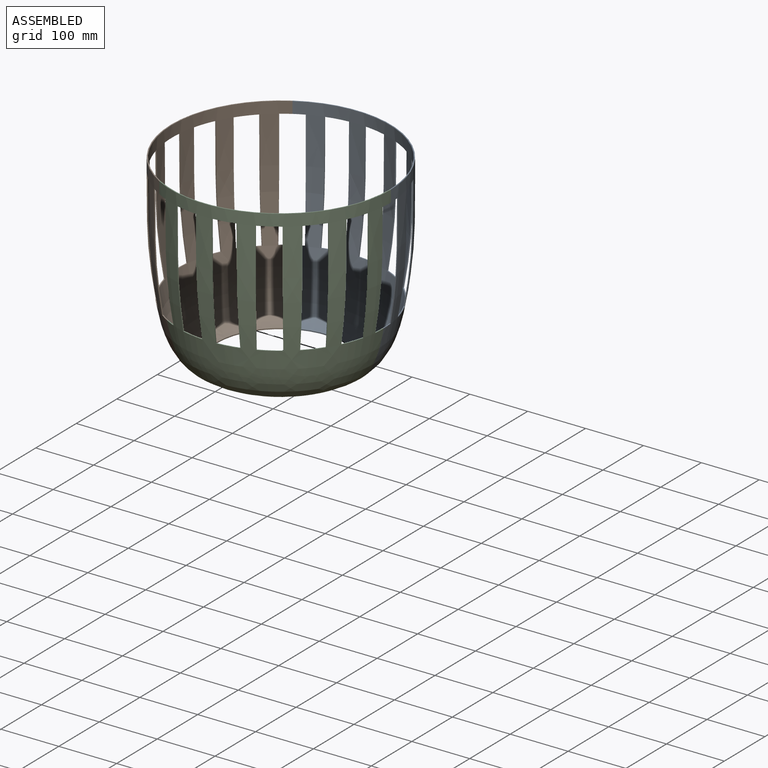
[diagram: assembled view]
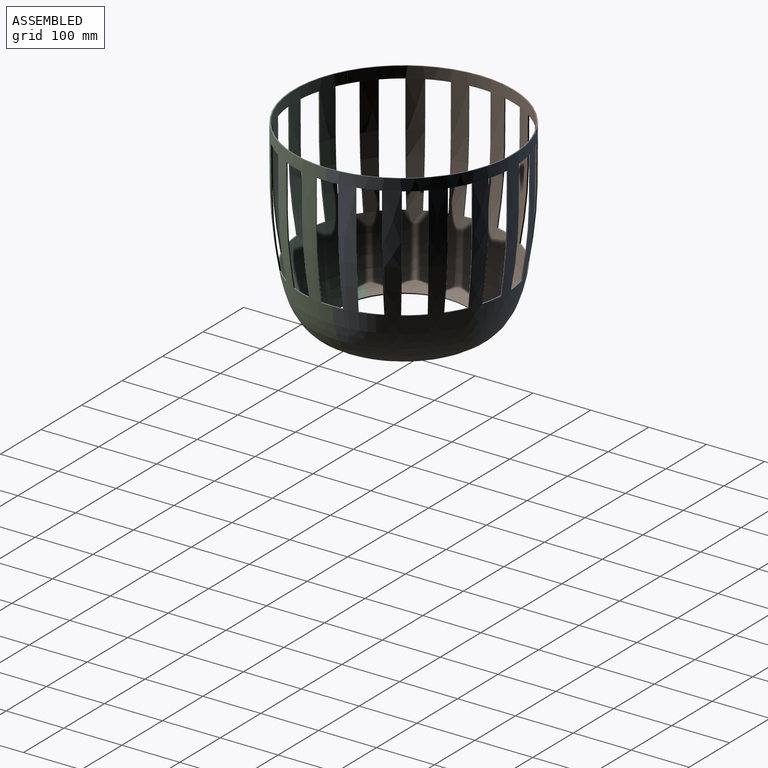
[diagram: assembled view, second angle]
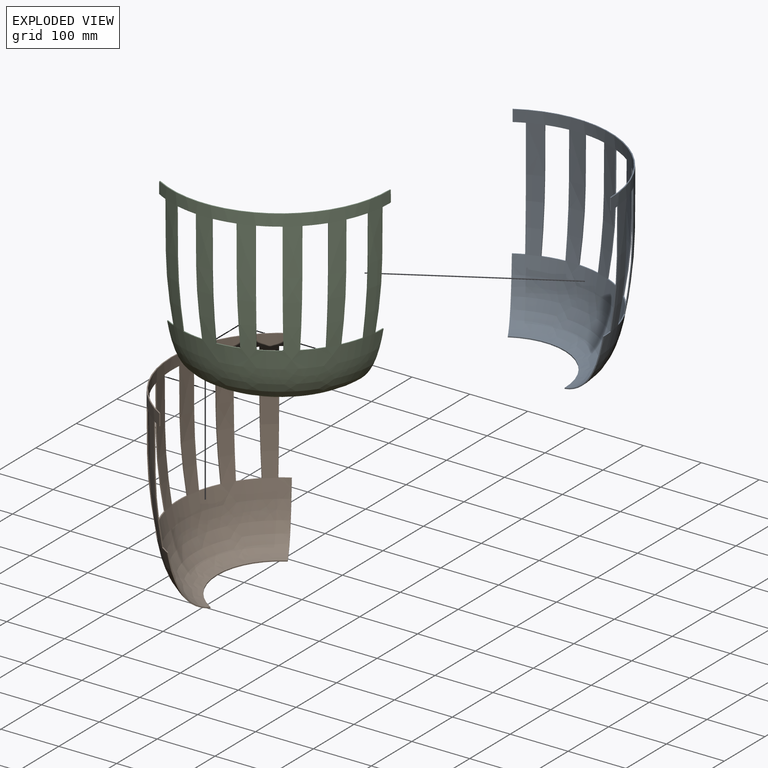
[diagram: exploded view]
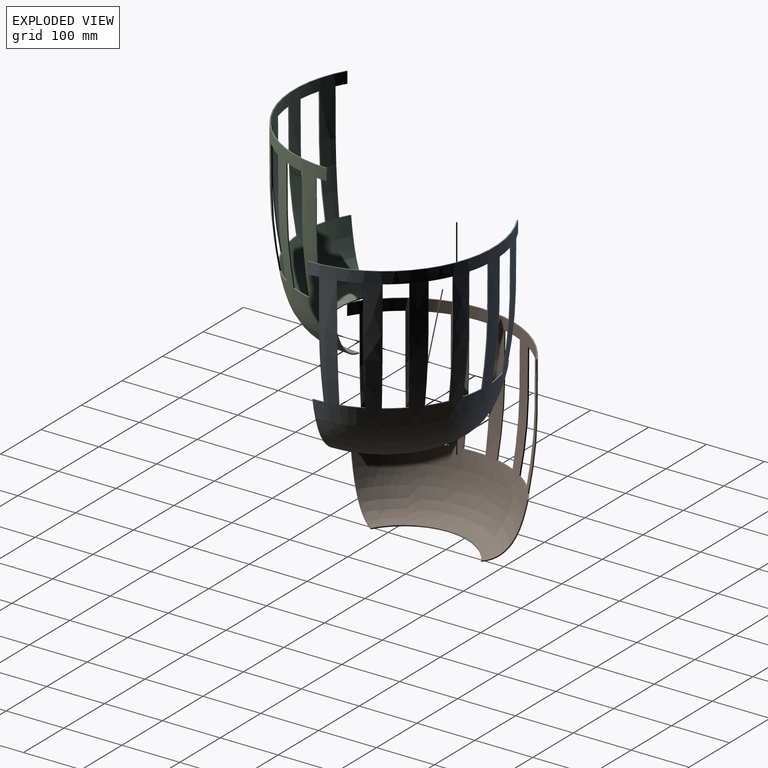
[diagram: exploded view, second angle]
ASSEMBLY  parts=3 mates=2
PART A: 34 faces, bbox 285.2x190.1x320 mm
  f0: revolved ~318.19x282.48mm, area 80564mm2, adj f2,f3,f4,f5,f6,f7,f8,f9
  f1: revolved ~320x285.18mm, area 82605.3mm2, adj f2,f3,f4,f5,f6,f7,f8,f9
  f2: plane 105.65x64.33mm, normal (-0.87,-0.5,0), area 231.3mm2, adj f0,f1,f5,f32
  f3: plane 105.65x73.41mm, normal (0,-1,0), area 231.3mm2, adj f0,f1,f5,f9
  f4: cone r=188.2mm half-angle=89.7deg, axis (0,0,1), area 712.9mm2, adj f0,f1,f6,f7
  f5: cone r=109.89mm half-angle=3.4deg, axis (0,0,-1), area 415.2mm2, adj f0,f1,f2,f3
  f6: plane 20.05x1.71mm, normal (-0.87,-0.5,0), area 36mm2, adj f0,f1,f4,f33
  f7: plane 20.05x1.96mm, normal (0,-1,0), area 36mm2, adj f0,f1,f4,f10
  f8: plane 199.99x14.38mm, normal (0,-1,0), area 363.2mm2, adj f0,f1,f9,f10
  f9: plane 19x2.86mm, normal (0,0,1), area 34.8mm2, adj f0,f1,f3,f8
  f10: plane 19x2.76mm, normal (0,0,-1), area 34.3mm2, adj f0,f1,f7,f8
  f11: plane 36.34x14.72mm, normal (0,0,1), area 69.6mm2, adj f0,f1,f12,f14
  f12: plane 199.99x13.51mm, normal (0.34,-0.94,0), area 363.2mm2, adj f0,f1,f11,f13
  f13: plane 36.33x14.7mm, normal (0,0,-1), area 68.5mm2, adj f0,f1,f12,f14
  f14: plane 199.99x13.51mm, normal (-0.34,0.94,0), area 363.2mm2, adj f0,f1,f11,f13
  f15: plane 30.29x25.83mm, normal (0,0,1), area 69.6mm2, adj f0,f1,f16,f18
  f16: plane 199.99x11.02mm, normal (0.64,-0.77,0), area 363.2mm2, adj f0,f1,f15,f17
  f17: plane 30.27x25.81mm, normal (0,0,-1), area 68.5mm2, adj f0,f1,f16,f18
  f18: plane 199.99x11.02mm, normal (-0.64,0.77,0), area 363.2mm2, adj f0,f1,f15,f17
  f19: plane 33.83x20.59mm, normal (0,0,1), area 69.6mm2, adj f0,f1,f20,f22
  f20: plane 199.99x12.45mm, normal (0.87,-0.5,0), area 363.2mm2, adj f0,f1,f19,f21
  f21: plane 33.81x20.57mm, normal (0,0,-1), area 68.5mm2, adj f0,f1,f20,f22
  f22: plane 199.99x12.45mm, normal (-0.87,0.5,0), area 363.2mm2, adj f0,f1,f19,f21
  f23: plane 37.74x8.41mm, normal (0,0,1), area 69.6mm2, adj f0,f1,f24,f26
  f24: plane 199.99x14.16mm, normal (0.98,-0.17,0), area 363.2mm2, adj f0,f1,f23,f25
  f25: plane 37.74x8.38mm, normal (0,0,-1), area 68.5mm2, adj f0,f1,f24,f26
  f26: plane 199.99x14.16mm, normal (-0.98,0.17,0), area 363.2mm2, adj f0,f1,f23,f25
  f27: plane 37.74x8.41mm, normal (0,0,1), area 69.6mm2, adj f0,f1,f28,f30
  f28: plane 199.99x14.16mm, normal (0.98,0.17,0), area 363.2mm2, adj f0,f1,f27,f29
  f29: plane 37.74x8.38mm, normal (0,0,-1), area 68.5mm2, adj f0,f1,f28,f30
  f30: plane 199.99x14.16mm, normal (-0.98,-0.17,0), area 363.2mm2, adj f0,f1,f27,f29
  f31: plane 199.99x12.45mm, normal (-0.87,-0.5,0), area 363.2mm2, adj f0,f1,f32,f33
  f32: plane 17.88x10.2mm, normal (0,0,1), area 34.8mm2, adj f0,f1,f2,f31
  f33: plane 17.84x10.23mm, normal (0,0,-1), area 34.3mm2, adj f0,f1,f6,f31
PART B: same geometry as A
PART C: same geometry as A
PLACE A t=(-22.83,-19.23,-106.14)mm
PLACE B rot(axis=(0,0,1),120deg) t=(-22.86,-19.17,-106.21)mm
PLACE C rot(axis=(0,0,-1),120deg) t=(-22.9,-19.23,-106.27)mm
MATE fastened C.f3 <-> B.f2  axis (-0.87,0.5,0) through (-99.47,-151.86,-64.08)mm
MATE fastened B.f3 <-> A.f2  axis (0.87,0.5,0) through (-99.44,113.47,-64.01)mm
